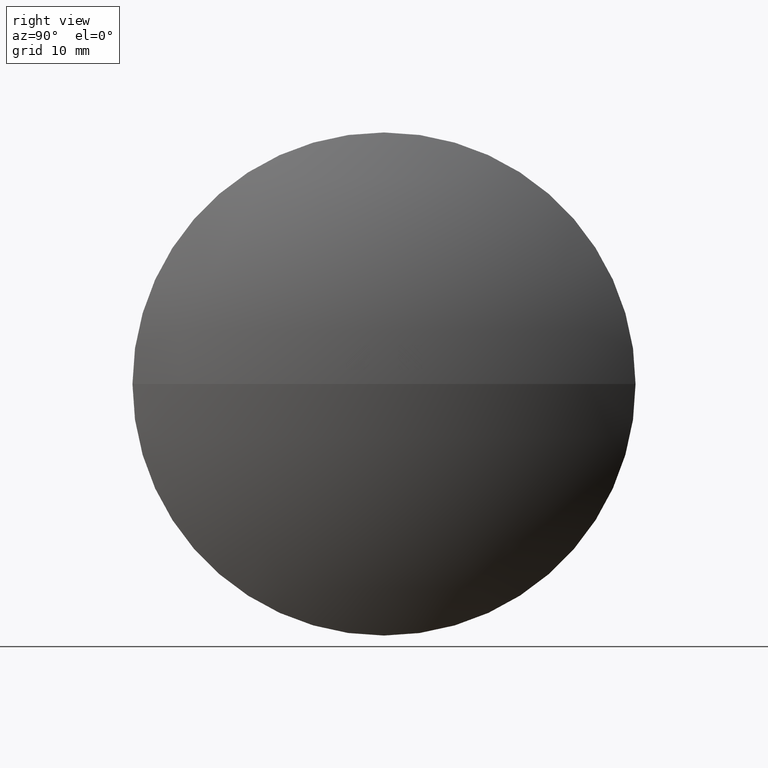
[diagram: clean part render]
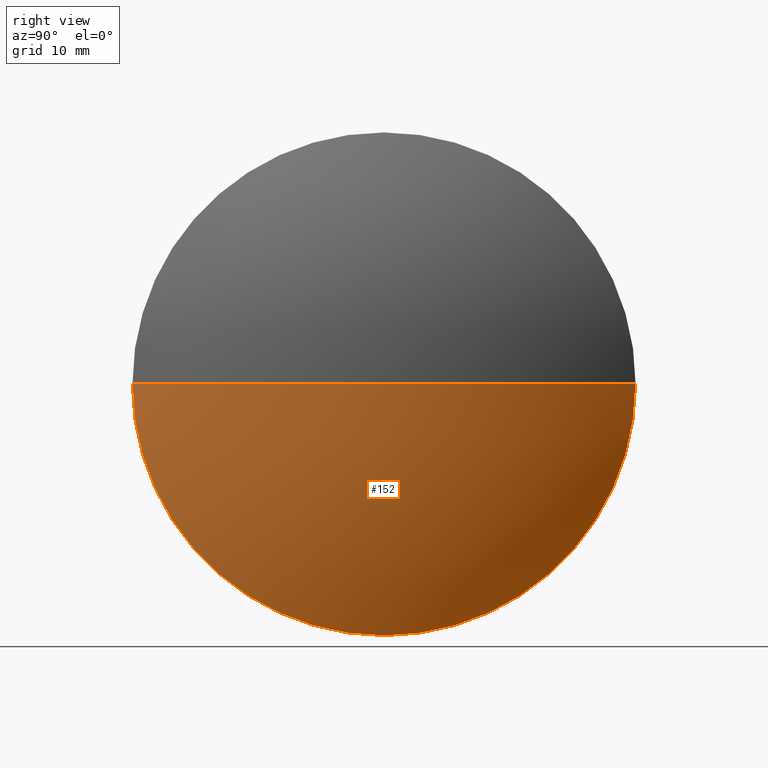
[diagram: same view with one face highlighted and labeled with its STEP entity id]
A machine part, right view. The second image highlights one B-rep face of the part: STEP entity #152.
In plain terms, the highlighted spherical surface has radius 48.5889 mm.
Its self-contained STEP definition (entity closure, byte-faithful):
#4 = AXIS2_PLACEMENT_3D ( 'NONE', #332, #148, #183 ) ;
#5 = CIRCLE ( 'NONE', #46, 25.00000000000025900 ) ;
#22 = EDGE_LOOP ( 'NONE', ( #189, #75, #326, #261 ) ) ;
#36 = CARTESIAN_POINT ( 'NONE',  ( 171.6932948320147700, 95.70100988816007300, 0.0000000000000000000 ) ) ;
#46 = AXIS2_PLACEMENT_3D ( 'NONE', #36, #124, #206 ) ;
#75 = ORIENTED_EDGE ( 'NONE', *, *, #150, .T. ) ;
#76 = AXIS2_PLACEMENT_3D ( 'NONE', #269, #174, #147 ) ;
#78 = EDGE_CURVE ( 'NONE', #285, #82, #236, .T. ) ;
#82 = VERTEX_POINT ( 'NONE', #298 ) ;
#86 = CARTESIAN_POINT ( 'NONE',  ( 171.6932948320147700, 70.70100988815981700, -3.061616997868414600E-015 ) ) ;
#124 = DIRECTION ( 'NONE',  ( -1.000000000000000000, -0.0000000000000000000, -0.0000000000000000000 ) ) ;
#134 = CIRCLE ( 'NONE', #4, 48.58885379061425900 ) ;
#145 = CARTESIAN_POINT ( 'NONE',  ( 130.0294410414005600, 95.70100988816007300, 0.0000000000000000000 ) ) ;
#147 = DIRECTION ( 'NONE',  ( 0.0000000000000000000, 1.000000000000000000, 1.224646799147353200E-016 ) ) ;
#148 = DIRECTION ( 'NONE',  ( -0.0000000000000000000, 0.0000000000000000000, 1.000000000000000000 ) ) ;
#150 = EDGE_CURVE ( 'NONE', #281, #331, #299, .T. ) ;
#152 = ADVANCED_FACE ( 'NONE', ( #187 ), #314, .T. ) ;
#170 = AXIS2_PLACEMENT_3D ( 'NONE', #222, #245, #295 ) ;
#172 = DIRECTION ( 'NONE',  ( -0.0000000000000000000, 0.0000000000000000000, -1.000000000000000000 ) ) ;
#173 = AXIS2_PLACEMENT_3D ( 'NONE', #145, #172, #200 ) ;
#174 = DIRECTION ( 'NONE',  ( 0.0000000000000000000, 1.224646799147353200E-016, -1.000000000000000000 ) ) ;
#180 = CARTESIAN_POINT ( 'NONE',  ( 178.6182948320148400, 95.70100988816007300, 0.0000000000000000000 ) ) ;
#183 = DIRECTION ( 'NONE',  ( 1.000000000000000000, 0.0000000000000000000, 0.0000000000000000000 ) ) ;
#187 = FACE_OUTER_BOUND ( 'NONE', #22, .T. ) ;
#189 = ORIENTED_EDGE ( 'NONE', *, *, #253, .F. ) ;
#200 = DIRECTION ( 'NONE',  ( 0.0000000000000000000, 1.000000000000000000, 0.0000000000000000000 ) ) ;
#206 = DIRECTION ( 'NONE',  ( 0.0000000000000000000, 0.0000000000000000000, 1.000000000000000000 ) ) ;
#222 = CARTESIAN_POINT ( 'NONE',  ( 171.6932948320147700, 95.70100988816007300, 0.0000000000000000000 ) ) ;
#236 = CIRCLE ( 'NONE', #170, 25.00000000000025900 ) ;
#245 = DIRECTION ( 'NONE',  ( -1.000000000000000000, -0.0000000000000000000, -0.0000000000000000000 ) ) ;
#253 = EDGE_CURVE ( 'NONE', #281, #285, #134, .T. ) ;
#261 = ORIENTED_EDGE ( 'NONE', *, *, #78, .F. ) ;
#269 = CARTESIAN_POINT ( 'NONE',  ( 130.0294410414005600, 95.70100988816007300, 0.0000000000000000000 ) ) ;
#281 = VERTEX_POINT ( 'NONE', #180 ) ;
#285 = VERTEX_POINT ( 'NONE', #301 ) ;
#295 = DIRECTION ( 'NONE',  ( 0.0000000000000000000, 0.0000000000000000000, 1.000000000000000000 ) ) ;
#298 = CARTESIAN_POINT ( 'NONE',  ( 171.6932948320147700, 95.70100988816007300, -25.00000000000025900 ) ) ;
#299 = CIRCLE ( 'NONE', #76, 48.58885379061425900 ) ;
#301 = CARTESIAN_POINT ( 'NONE',  ( 171.6932948320147700, 120.7010098881603300, 0.0000000000000000000 ) ) ;
#314 = SPHERICAL_SURFACE ( 'NONE', #173, 48.58885379061425900 ) ;
#326 = ORIENTED_EDGE ( 'NONE', *, *, #335, .F. ) ;
#331 = VERTEX_POINT ( 'NONE', #86 ) ;
#332 = CARTESIAN_POINT ( 'NONE',  ( 130.0294410414005600, 95.70100988816007300, 0.0000000000000000000 ) ) ;
#335 = EDGE_CURVE ( 'NONE', #82, #331, #5, .T. ) ;